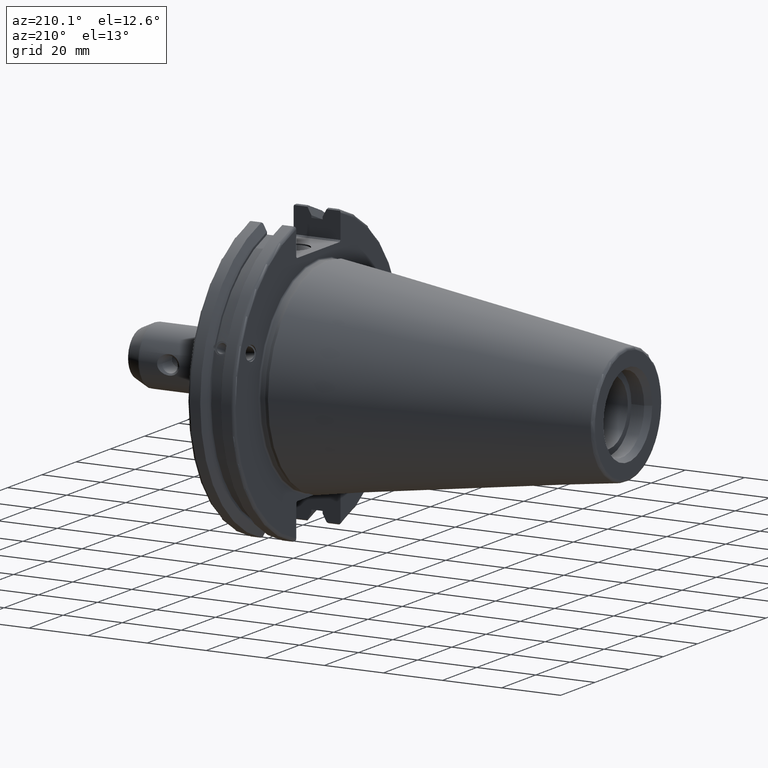
[diagram: clean part render]
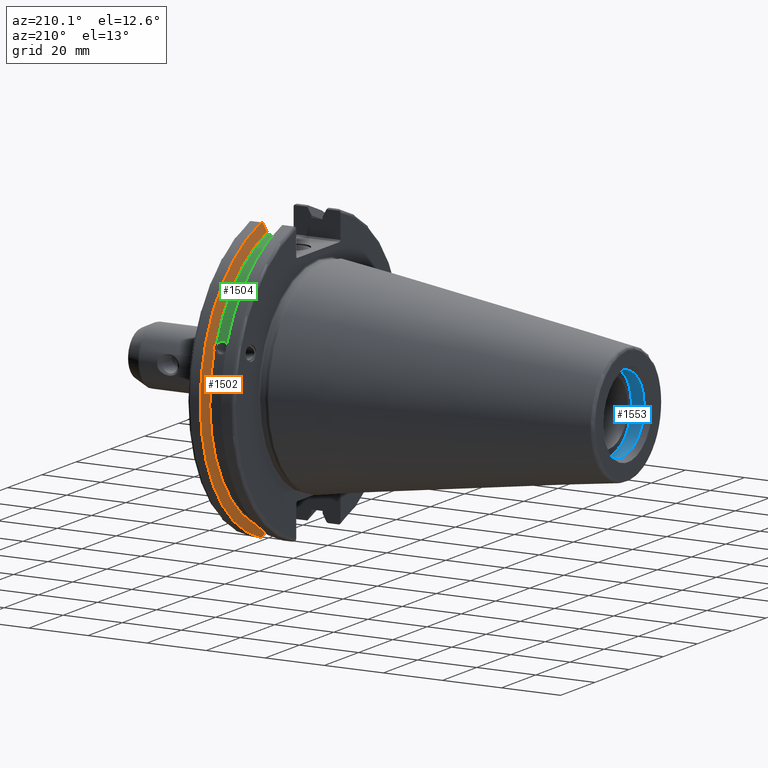
[diagram: same view with three faces highlighted in distinct colors, each labeled with its STEP entity id]
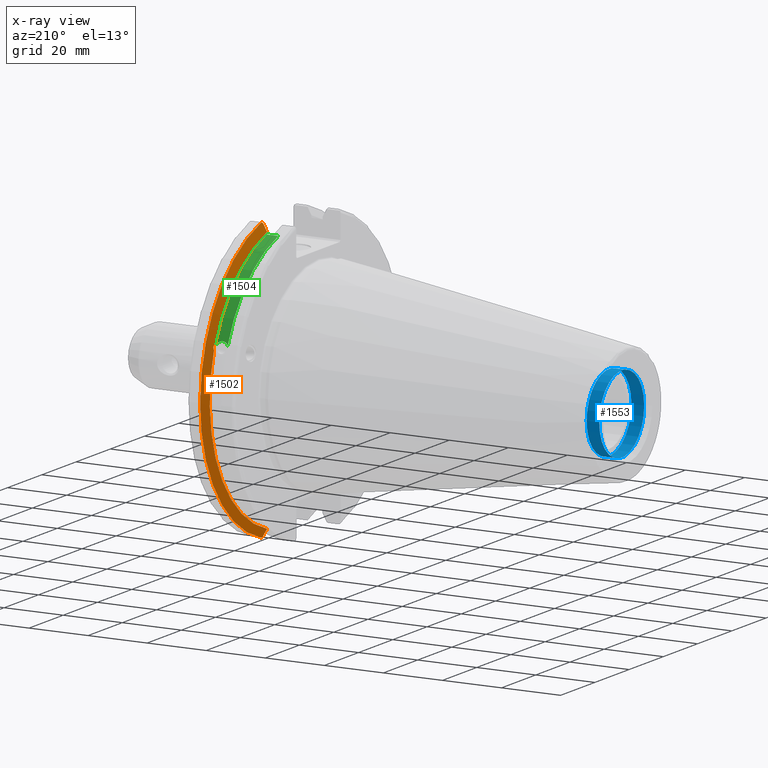
[diagram: x-ray of the same camera — body ghosted, the three highlighted faces saturated]
A machine part, auxiliary view with three faces highlighted in distinct colors.
The next image is the same camera in x-ray (body ghosted, the three faces saturated) — at least one of them is partly hidden behind the body in this view.
Their STEP definitions:

[orange] entity #1502 — the highlighted conical surface has half-angle 60 deg.
#19=(
BOUNDED_CURVE()
B_SPLINE_CURVE(2,(#2820,#2821,#2822),.UNSPECIFIED.,.F.,.F.)
B_SPLINE_CURVE_WITH_KNOTS((3,3),(0.,0.27582391067312),.UNSPECIFIED.)
CURVE()
GEOMETRIC_REPRESENTATION_ITEM()
RATIONAL_B_SPLINE_CURVE((1.,1.00038235574463,1.0001287363678))
REPRESENTATION_ITEM('')
);
#20=(
BOUNDED_CURVE()
B_SPLINE_CURVE(2,(#2824,#2825,#2826),.UNSPECIFIED.,.F.,.F.)
B_SPLINE_CURVE_WITH_KNOTS((3,3),(0.,0.0648240472897789),.UNSPECIFIED.)
CURVE()
GEOMETRIC_REPRESENTATION_ITEM()
RATIONAL_B_SPLINE_CURVE((1.,1.00011477674848,1.00019140645968))
REPRESENTATION_ITEM('')
);
#21=(
BOUNDED_CURVE()
B_SPLINE_CURVE(2,(#2830,#2831,#2832),.UNSPECIFIED.,.F.,.F.)
B_SPLINE_CURVE_WITH_KNOTS((3,3),(0.325260944932466,0.390084992222202),
 .UNSPECIFIED.)
CURVE()
GEOMETRIC_REPRESENTATION_ITEM()
RATIONAL_B_SPLINE_CURVE((1.00019140645958,1.00011477674842,1.))
REPRESENTATION_ITEM('')
);
#22=(
BOUNDED_CURVE()
B_SPLINE_CURVE(2,(#2834,#2835,#2836),.UNSPECIFIED.,.F.,.F.)
B_SPLINE_CURVE_WITH_KNOTS((3,3),(0.0558332664531693,0.331657177124505),
 .UNSPECIFIED.)
CURVE()
GEOMETRIC_REPRESENTATION_ITEM()
RATIONAL_B_SPLINE_CURVE((1.00012873636717,1.00038235574273,1.))
REPRESENTATION_ITEM('')
);
#154=FACE_OUTER_BOUND('',#250,.T.);
#250=EDGE_LOOP('',(#1173,#1174,#1175,#1176,#1177,#1178,#1179,#1180,#1181));
#352=CIRCLE('',#1650,46.4219772964944);
#353=CIRCLE('',#1651,49.2125);
#354=CIRCLE('',#1652,46.4219772964944);
#596=B_SPLINE_CURVE_WITH_KNOTS('',3,(#2745,#2746,#2747,#2748,#2749,#2750,
#2751,#2752),.UNSPECIFIED.,.F.,.F.,(4,2,2,4),(0.426712868358719,0.441644498666905,
0.480313313223129,0.518982127779353),.UNSPECIFIED.);
#600=B_SPLINE_CURVE_WITH_KNOTS('',3,(#2807,#2808,#2809,#2810,#2811,#2812,
#2813,#2814),.UNSPECIFIED.,.F.,.F.,(4,2,2,4),(0.518982127779353,0.557650942335577,
0.5963197568918,0.611251387199989),.UNSPECIFIED.);
#691=VERTEX_POINT('',#2742);
#692=VERTEX_POINT('',#2744);
#699=VERTEX_POINT('',#2805);
#700=VERTEX_POINT('',#2817);
#701=VERTEX_POINT('',#2819);
#702=VERTEX_POINT('',#2823);
#703=VERTEX_POINT('',#2827);
#704=VERTEX_POINT('',#2829);
#705=VERTEX_POINT('',#2833);
#869=EDGE_CURVE('',#692,#691,#596,.T.);
#877=EDGE_CURVE('',#691,#699,#600,.T.);
#878=EDGE_CURVE('',#699,#700,#352,.T.);
#879=EDGE_CURVE('',#700,#701,#19,.T.);
#880=EDGE_CURVE('',#702,#701,#20,.T.);
#881=EDGE_CURVE('',#703,#702,#353,.T.);
#882=EDGE_CURVE('',#704,#703,#21,.T.);
#883=EDGE_CURVE('',#704,#705,#22,.T.);
#884=EDGE_CURVE('',#705,#692,#354,.T.);
#1173=ORIENTED_EDGE('',*,*,#869,.T.);
#1174=ORIENTED_EDGE('',*,*,#877,.T.);
#1175=ORIENTED_EDGE('',*,*,#878,.T.);
#1176=ORIENTED_EDGE('',*,*,#879,.T.);
#1177=ORIENTED_EDGE('',*,*,#880,.F.);
#1178=ORIENTED_EDGE('',*,*,#881,.F.);
#1179=ORIENTED_EDGE('',*,*,#882,.F.);
#1180=ORIENTED_EDGE('',*,*,#883,.T.);
#1181=ORIENTED_EDGE('',*,*,#884,.T.);
#1464=CONICAL_SURFACE('',#1649,47.8172386482472,1.0471975511966);
#1502=ADVANCED_FACE('',(#154),#1464,.T.);
#1649=AXIS2_PLACEMENT_3D('',#2816,#1922,#1923);
#1650=AXIS2_PLACEMENT_3D('',#2818,#1924,#1925);
#1651=AXIS2_PLACEMENT_3D('',#2828,#1926,#1927);
#1652=AXIS2_PLACEMENT_3D('',#2837,#1928,#1929);
#1922=DIRECTION('center_axis',(1.,0.,0.));
#1923=DIRECTION('ref_axis',(0.,1.,0.));
#1924=DIRECTION('center_axis',(1.,0.,0.));
#1925=DIRECTION('ref_axis',(0.,0.,-1.));
#1926=DIRECTION('center_axis',(1.,0.,0.));
#1927=DIRECTION('ref_axis',(0.,0.,-1.));
#1928=DIRECTION('center_axis',(1.,0.,0.));
#1929=DIRECTION('ref_axis',(0.,0.,-1.));
#2742=CARTESIAN_POINT('',(13.2341,43.923494649906,15.9868446375166));
#2744=CARTESIAN_POINT('',(13.0491,43.9096390749305,15.0646464421033));
#2745=CARTESIAN_POINT('Ctrl Pts',(13.0491,43.9096390749305,15.0646464421033));
#2746=CARTESIAN_POINT('Ctrl Pts',(13.0660815609661,43.9250360001461,15.1104047527575));
#2747=CARTESIAN_POINT('Ctrl Pts',(13.0821132459668,43.9385582852181,15.1564111356409));
#2748=CARTESIAN_POINT('Ctrl Pts',(13.1358132615496,43.9797830409459,15.3217566390709));
#2749=CARTESIAN_POINT('Ctrl Pts',(13.1719838933644,43.9989016655819,15.4570249042868));
#2750=CARTESIAN_POINT('Ctrl Pts',(13.2212913174802,43.9931221605126,15.7289849146254));
#2751=CARTESIAN_POINT('Ctrl Pts',(13.2341,43.9675796948952,15.8657219718732));
#2752=CARTESIAN_POINT('Ctrl Pts',(13.2341,43.923494649906,15.9868446375166));
#2805=CARTESIAN_POINT('',(13.0491,43.3201030900029,16.684383248648));
#2807=CARTESIAN_POINT('Ctrl Pts',(13.2341,43.923494649906,15.9868446375166));
#2808=CARTESIAN_POINT('Ctrl Pts',(13.2341,43.8794096049169,16.10796730316));
#2809=CARTESIAN_POINT('Ctrl Pts',(13.2212913174802,43.8110833825828,16.2291323464527));
#2810=CARTESIAN_POINT('Ctrl Pts',(13.1719838933644,43.6406982153492,16.441180795372));
#2811=CARTESIAN_POINT('Ctrl Pts',(13.1358132615496,43.5391037343221,16.5325130832406));
#2812=CARTESIAN_POINT('Ctrl Pts',(13.0821132459668,43.4012416983557,16.6326763251437));
#2813=CARTESIAN_POINT('Ctrl Pts',(13.0660815609661,43.3613106941341,16.6592273018006));
#2814=CARTESIAN_POINT('Ctrl Pts',(13.0491,43.3201030900029,16.684383248648));
#2816=CARTESIAN_POINT('Origin',(13.8546545170244,0.,0.));
#2817=CARTESIAN_POINT('',(13.0491,12.95,44.5791147973604));
#2818=CARTESIAN_POINT('Origin',(13.0491,0.,0.));
#2819=CARTESIAN_POINT('',(14.3818103943757,12.95,46.9780755322918));
#2820=CARTESIAN_POINT('Ctrl Pts',(13.0491,12.95,44.5791147973604));
#2821=CARTESIAN_POINT('Ctrl Pts',(13.6979955094656,12.95,45.7494966802583));
#2822=CARTESIAN_POINT('Ctrl Pts',(14.3818103943757,12.95,46.9780755322918));
#2823=CARTESIAN_POINT('',(14.6602090340487,13.4317035994433,47.3440544806494));
#2824=CARTESIAN_POINT('Ctrl Pts',(14.6602090340487,13.4317035994433,47.3440544806494));
#2825=CARTESIAN_POINT('Ctrl Pts',(14.5199310333618,13.1896660169966,47.1601640966264));
#2826=CARTESIAN_POINT('Ctrl Pts',(14.3818103943757,12.95,46.9780755322918));
#2827=CARTESIAN_POINT('',(14.6602090340487,13.4317035994433,-47.3440544806494));
#2828=CARTESIAN_POINT('Origin',(14.6602090340487,0.,0.));
#2829=CARTESIAN_POINT('',(14.3818103943757,12.95,-46.9780755322918));
#2830=CARTESIAN_POINT('Ctrl Pts',(14.3818103943757,12.95,-46.9780755322918));
#2831=CARTESIAN_POINT('Ctrl Pts',(14.5199310333618,13.1896660169966,-47.1601640966264));
#2832=CARTESIAN_POINT('Ctrl Pts',(14.6602090340487,13.4317035994433,-47.3440544806494));
#2833=CARTESIAN_POINT('',(13.0491,12.95,-44.5791147973605));
#2834=CARTESIAN_POINT('Ctrl Pts',(14.3818103943757,12.95,-46.9780755322918));
#2835=CARTESIAN_POINT('Ctrl Pts',(13.6979955094864,12.95,-45.7494966802956));
#2836=CARTESIAN_POINT('Ctrl Pts',(13.0491,12.95,-44.5791147973604));
#2837=CARTESIAN_POINT('Origin',(13.0491,0.,0.));

[blue] entity #1553 — the highlighted cylindrical surface (bore or boss wall) has radius 13.1 mm, axis along (1, 0, 0).
#123=CYLINDRICAL_SURFACE('',#1738,13.1);
#205=FACE_OUTER_BOUND('',#309,.T.);
#309=EDGE_LOOP('',(#1444,#1445,#1446,#1447));
#389=CIRCLE('',#1739,13.1);
#390=CIRCLE('',#1740,13.1);
#480=LINE('',#3177,#572);
#572=VECTOR('',#2155,13.1);
#769=VERTEX_POINT('',#3174);
#770=VERTEX_POINT('',#3176);
#995=EDGE_CURVE('',#769,#769,#389,.T.);
#996=EDGE_CURVE('',#769,#770,#480,.T.);
#997=EDGE_CURVE('',#770,#770,#390,.T.);
#1444=ORIENTED_EDGE('',*,*,#995,.T.);
#1445=ORIENTED_EDGE('',*,*,#996,.T.);
#1446=ORIENTED_EDGE('',*,*,#997,.F.);
#1447=ORIENTED_EDGE('',*,*,#996,.F.);
#1553=ADVANCED_FACE('',(#205),#123,.F.);
#1738=AXIS2_PLACEMENT_3D('',#3173,#2151,#2152);
#1739=AXIS2_PLACEMENT_3D('',#3175,#2153,#2154);
#1740=AXIS2_PLACEMENT_3D('',#3178,#2156,#2157);
#2151=DIRECTION('center_axis',(1.,0.,0.));
#2152=DIRECTION('ref_axis',(0.,1.,0.));
#2153=DIRECTION('center_axis',(1.,0.,0.));
#2154=DIRECTION('ref_axis',(0.,0.,-1.));
#2155=DIRECTION('',(-1.,0.,0.));
#2156=DIRECTION('center_axis',(1.,0.,0.));
#2157=DIRECTION('ref_axis',(0.,0.,-1.));
#3173=CARTESIAN_POINT('Origin',(-97.396594833006,0.,0.));
#3174=CARTESIAN_POINT('',(-95.25,-13.1,-1.60428730688303E-15));
#3175=CARTESIAN_POINT('Origin',(-95.25,0.,0.));
#3176=CARTESIAN_POINT('',(-99.5431896660119,-13.1,-1.60428730688303E-15));
#3177=CARTESIAN_POINT('',(-97.396594833006,-13.1,-1.60428730688303E-15));
#3178=CARTESIAN_POINT('Origin',(-99.5431896660119,0.,0.));

[green] entity #1504 — the highlighted cylindrical surface (partial cylindrical patch) has radius 45.6435 mm, axis along (1, 0, 0).
#111=CYLINDRICAL_SURFACE('',#1655,45.6435);
#156=FACE_OUTER_BOUND('',#252,.T.);
#252=EDGE_LOOP('',(#1186,#1187,#1188,#1189));
#355=CIRCLE('',#1654,45.6435);
#356=CIRCLE('',#1656,45.6435);
#430=LINE('',#2845,#522);
#522=VECTOR('',#1939,10.);
#599=B_SPLINE_CURVE_WITH_KNOTS('',3,(#2790,#2791,#2792,#2793,#2794,#2795,
#2796,#2797,#2798,#2799,#2800,#2801,#2802,#2803,#2804),.UNSPECIFIED.,.F.,
 .F.,(4,2,2,3,2,2,4),(-0.231381164054416,-0.158232381135623,-0.0791161905678115,
0.,0.0791161905678115,0.158232381135623,0.231381164054563),
 .UNSPECIFIED.);
#697=VERTEX_POINT('',#2787);
#698=VERTEX_POINT('',#2789);
#706=VERTEX_POINT('',#2839);
#707=VERTEX_POINT('',#2843);
#875=EDGE_CURVE('',#698,#697,#599,.T.);
#885=EDGE_CURVE('',#698,#706,#355,.T.);
#887=EDGE_CURVE('',#697,#707,#356,.T.);
#888=EDGE_CURVE('',#707,#706,#430,.T.);
#1186=ORIENTED_EDGE('',*,*,#875,.T.);
#1187=ORIENTED_EDGE('',*,*,#887,.T.);
#1188=ORIENTED_EDGE('',*,*,#888,.T.);
#1189=ORIENTED_EDGE('',*,*,#885,.F.);
#1504=ADVANCED_FACE('',(#156),#111,.T.);
#1654=AXIS2_PLACEMENT_3D('',#2840,#1932,#1933);
#1655=AXIS2_PLACEMENT_3D('',#2842,#1935,#1936);
#1656=AXIS2_PLACEMENT_3D('',#2844,#1937,#1938);
#1932=DIRECTION('center_axis',(1.,0.,0.));
#1933=DIRECTION('ref_axis',(0.,0.,-1.));
#1935=DIRECTION('center_axis',(1.,0.,0.));
#1936=DIRECTION('ref_axis',(0.,1.,0.));
#1937=DIRECTION('center_axis',(1.,0.,0.));
#1938=DIRECTION('ref_axis',(0.,0.,-1.));
#1939=DIRECTION('',(1.,0.,0.));
#2787=CARTESIAN_POINT('',(9.2191,42.5884454651059,16.4180816515115));
#2789=CARTESIAN_POINT('',(13.0491,42.5884454651059,16.4180816515115));
#2790=CARTESIAN_POINT('Ctrl Pts',(13.0491,42.5884454651059,16.4180816515115));
#2791=CARTESIAN_POINT('Ctrl Pts',(12.9428782240206,42.5035323832641,16.6383458840848));
#2792=CARTESIAN_POINT('Ctrl Pts',(12.791391924423,42.4245077186417,16.8380515255915));
#2793=CARTESIAN_POINT('Ctrl Pts',(12.4325949659982,42.2908173017388,17.1712159412199));
#2794=CARTESIAN_POINT('Ctrl Pts',(12.1964796719457,42.2294695309474,17.3208689126276));
#2795=CARTESIAN_POINT('Ctrl Pts',(11.6790940832128,42.1475978938586,17.5191491957165));
#2796=CARTESIAN_POINT('Ctrl Pts',(11.397820635226,42.1271980081205,17.5678194501937));
#2797=CARTESIAN_POINT('Ctrl Pts',(11.1341,42.1271980081205,17.5678194501937));
#2798=CARTESIAN_POINT('Ctrl Pts',(10.870379364774,42.1271980081205,17.5678194501937));
#2799=CARTESIAN_POINT('Ctrl Pts',(10.5891059167872,42.1475978938586,17.5191491957165));
#2800=CARTESIAN_POINT('Ctrl Pts',(10.0717203280543,42.2294695309474,17.3208689126276));
#2801=CARTESIAN_POINT('Ctrl Pts',(9.83560503400179,42.2908173017388,17.1712159412199));
#2802=CARTESIAN_POINT('Ctrl Pts',(9.47680807557666,42.4245077186418,16.8380515255912));
#2803=CARTESIAN_POINT('Ctrl Pts',(9.32532177598177,42.5035323832622,16.6383458840897));
#2804=CARTESIAN_POINT('Ctrl Pts',(9.2191,42.5884454651059,16.4180816515115));
#2839=CARTESIAN_POINT('',(13.0491,12.95,43.7678716897452));
#2840=CARTESIAN_POINT('Origin',(13.0491,0.,0.));
#2842=CARTESIAN_POINT('Origin',(11.1341,0.,0.));
#2843=CARTESIAN_POINT('',(9.2191,12.95,43.7678716897452));
#2844=CARTESIAN_POINT('Origin',(9.2191,0.,0.));
#2845=CARTESIAN_POINT('',(11.1341,12.95,43.7678716897452));